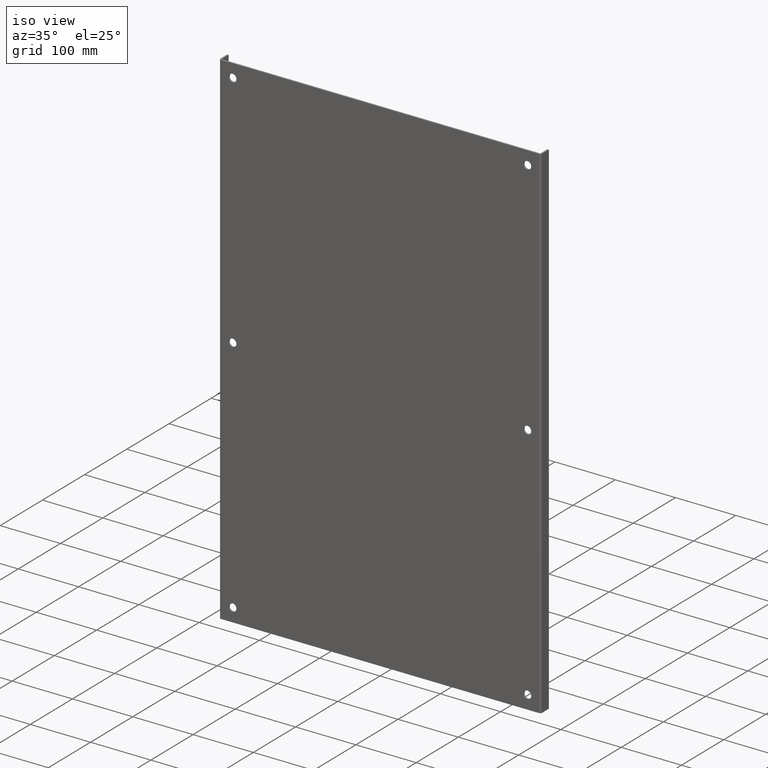
[diagram: clean part render]
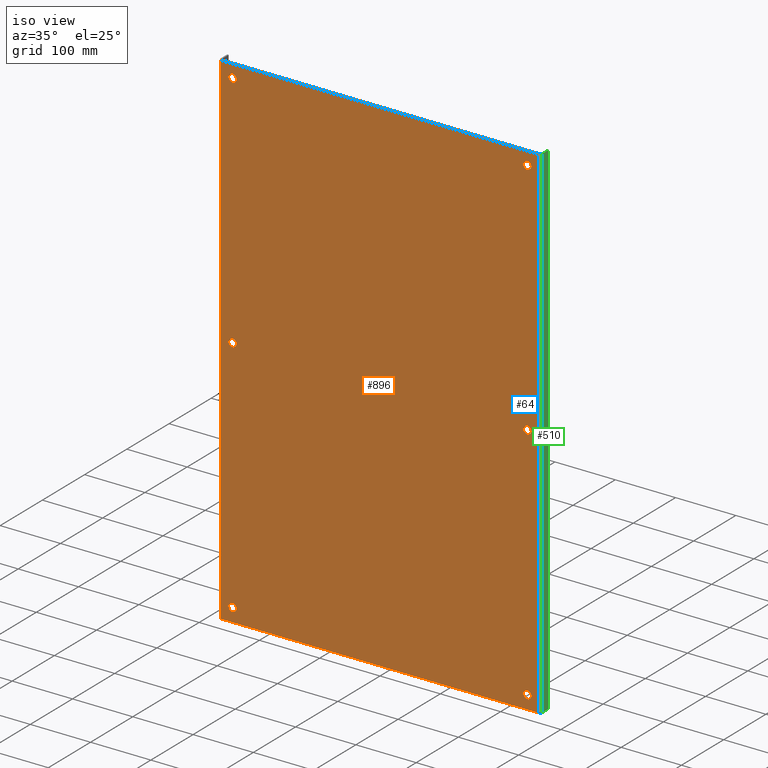
[diagram: same view with three faces highlighted in distinct colors, each labeled with its STEP entity id]
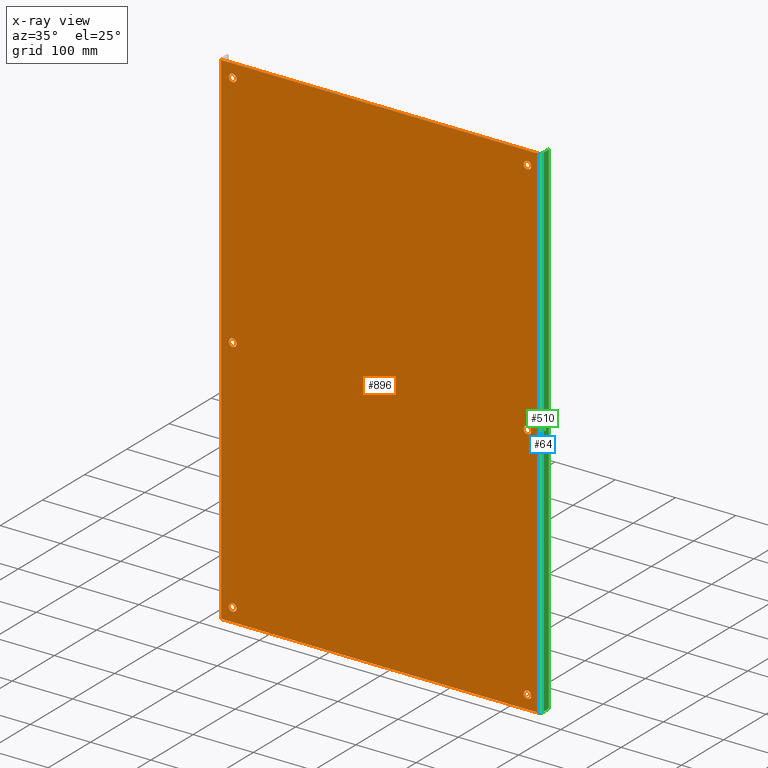
[diagram: x-ray of the same camera — body ghosted, the three highlighted faces saturated]
A machine part, iso view with three faces highlighted in distinct colors.
The next image is the same camera in x-ray (body ghosted, the three faces saturated) — at least one of them is partly hidden behind the body in this view.
Their STEP definitions:

[orange] entity #896 — the highlighted planar face has unit normal (0, -1, 0).
#35 = CARTESIAN_POINT ( 'NONE',  ( -10.37500000000000000, 0.0000000000000000000, 16.50000000000000000 ) ) ;
#38 = VERTEX_POINT ( 'NONE', #762 ) ;
#41 = CIRCLE ( 'NONE', #587, 0.2500000000000000000 ) ;
#50 = EDGE_CURVE ( 'NONE', #822, #822, #879, .T. ) ;
#59 = VERTEX_POINT ( 'NONE', #1000 ) ;
#74 = EDGE_CURVE ( 'NONE', #59, #59, #505, .T. ) ;
#88 = AXIS2_PLACEMENT_3D ( 'NONE', #1035, #494, #1028 ) ;
#99 = CARTESIAN_POINT ( 'NONE',  ( 9.625000000000000000, 0.0000000000000000000, -5.463695987328543200E-16 ) ) ;
#108 = DIRECTION ( 'NONE',  ( 1.000000000000000000, 0.0000000000000000000, 0.0000000000000000000 ) ) ;
#113 = DIRECTION ( 'NONE',  ( 0.0000000000000000000, -0.0000000000000000000, -1.000000000000000000 ) ) ;
#115 = CARTESIAN_POINT ( 'NONE',  ( -9.625000000000000000, 0.0000000000000000000, -0.2500000000000005551 ) ) ;
#133 = EDGE_CURVE ( 'NONE', #372, #372, #975, .T. ) ;
#158 = EDGE_LOOP ( 'NONE', ( #939 ) ) ;
#204 = ORIENTED_EDGE ( 'NONE', *, *, #1005, .T. ) ;
#247 = FACE_OUTER_BOUND ( 'NONE', #343, .T. ) ;
#267 = EDGE_CURVE ( 'NONE', #38, #38, #41, .T. ) ;
#271 = CARTESIAN_POINT ( 'NONE',  ( 10.37500000000000000, 0.0000000000000000000, 16.50000000000000000 ) ) ;
#276 = CARTESIAN_POINT ( 'NONE',  ( -9.625000000000000000, 0.0000000000000000000, 15.62500000000000178 ) ) ;
#290 = ORIENTED_EDGE ( 'NONE', *, *, #785, .T. ) ;
#304 = VECTOR ( 'NONE', #108, 39.37007874015748143 ) ;
#322 = AXIS2_PLACEMENT_3D ( 'NONE', #805, #1047, #332 ) ;
#332 = DIRECTION ( 'NONE',  ( 0.0000000000000000000, 0.0000000000000000000, -1.000000000000000000 ) ) ;
#343 = EDGE_LOOP ( 'NONE', ( #204, #381, #542, #487 ) ) ;
#344 = EDGE_LOOP ( 'NONE', ( #618 ) ) ;
#346 = CARTESIAN_POINT ( 'NONE',  ( -9.625000000000000000, 0.0000000000000000000, -15.62500000000000178 ) ) ;
#347 = DIRECTION ( 'NONE',  ( 0.0000000000000000000, -1.000000000000000000, 0.0000000000000000000 ) ) ;
#353 = LINE ( 'NONE', #614, #851 ) ;
#358 = EDGE_CURVE ( 'NONE', #366, #1006, #378, .T. ) ;
#359 = CARTESIAN_POINT ( 'NONE',  ( 9.625000000000000000, 0.0000000000000000000, 15.37500000000000000 ) ) ;
#362 = CARTESIAN_POINT ( 'NONE',  ( -9.625000000000000000, 0.0000000000000000000, -15.87500000000000178 ) ) ;
#366 = VERTEX_POINT ( 'NONE', #35 ) ;
#372 = VERTEX_POINT ( 'NONE', #362 ) ;
#378 = LINE ( 'NONE', #920, #432 ) ;
#381 = ORIENTED_EDGE ( 'NONE', *, *, #406, .T. ) ;
#382 = EDGE_LOOP ( 'NONE', ( #290 ) ) ;
#395 = AXIS2_PLACEMENT_3D ( 'NONE', #431, #347, #905 ) ;
#406 = EDGE_CURVE ( 'NONE', #980, #856, #353, .T. ) ;
#428 = FACE_BOUND ( 'NONE', #158, .T. ) ;
#430 = VECTOR ( 'NONE', #849, 39.37007874015748143 ) ;
#431 = CARTESIAN_POINT ( 'NONE',  ( -10.50000000000000000, 0.0000000000000000000, -16.50000000000000000 ) ) ;
#432 = VECTOR ( 'NONE', #113, 39.37007874015748143 ) ;
#436 = EDGE_CURVE ( 'NONE', #754, #754, #551, .T. ) ;
#444 = DIRECTION ( 'NONE',  ( 0.0000000000000000000, 0.0000000000000000000, -1.000000000000000000 ) ) ;
#449 = ORIENTED_EDGE ( 'NONE', *, *, #74, .T. ) ;
#456 = CARTESIAN_POINT ( 'NONE',  ( -10.50000000000000000, 0.0000000000000000000, -16.50000000000000000 ) ) ;
#470 = CIRCLE ( 'NONE', #322, 0.2500000000000008882 ) ;
#475 = EDGE_LOOP ( 'NONE', ( #541 ) ) ;
#487 = ORIENTED_EDGE ( 'NONE', *, *, #358, .T. ) ;
#488 = EDGE_LOOP ( 'NONE', ( #449 ) ) ;
#494 = DIRECTION ( 'NONE',  ( -0.0000000000000000000, 1.000000000000000000, -0.0000000000000000000 ) ) ;
#498 = EDGE_CURVE ( 'NONE', #856, #366, #874, .T. ) ;
#505 = CIRCLE ( 'NONE', #88, 0.2500000000000008882 ) ;
#514 = EDGE_LOOP ( 'NONE', ( #527 ) ) ;
#518 = PLANE ( 'NONE',  #395 ) ;
#520 = AXIS2_PLACEMENT_3D ( 'NONE', #346, #597, #810 ) ;
#527 = ORIENTED_EDGE ( 'NONE', *, *, #50, .T. ) ;
#533 = LINE ( 'NONE', #456, #304 ) ;
#541 = ORIENTED_EDGE ( 'NONE', *, *, #436, .T. ) ;
#542 = ORIENTED_EDGE ( 'NONE', *, *, #498, .T. ) ;
#551 = CIRCLE ( 'NONE', #1017, 0.2500000000000008882 ) ;
#574 = DIRECTION ( 'NONE',  ( 0.0000000000000000000, 0.0000000000000000000, -1.000000000000000000 ) ) ;
#580 = CARTESIAN_POINT ( 'NONE',  ( -9.625000000000000000, 0.0000000000000000000, -5.463695987328543200E-16 ) ) ;
#587 = AXIS2_PLACEMENT_3D ( 'NONE', #99, #611, #756 ) ;
#597 = DIRECTION ( 'NONE',  ( -0.0000000000000000000, 1.000000000000000000, -0.0000000000000000000 ) ) ;
#611 = DIRECTION ( 'NONE',  ( -0.0000000000000000000, 1.000000000000000000, -0.0000000000000000000 ) ) ;
#614 = CARTESIAN_POINT ( 'NONE',  ( 10.37499999999999822, 0.0000000000000000000, -16.50000000000000000 ) ) ;
#618 = ORIENTED_EDGE ( 'NONE', *, *, #133, .T. ) ;
#653 = DIRECTION ( 'NONE',  ( -0.0000000000000000000, 1.000000000000000000, -0.0000000000000000000 ) ) ;
#754 = VERTEX_POINT ( 'NONE', #846 ) ;
#756 = DIRECTION ( 'NONE',  ( 0.0000000000000000000, 0.0000000000000000000, -1.000000000000000000 ) ) ;
#762 = CARTESIAN_POINT ( 'NONE',  ( 9.625000000000000000, 0.0000000000000000000, -0.2500000000000005551 ) ) ;
#769 = AXIS2_PLACEMENT_3D ( 'NONE', #580, #653, #574 ) ;
#778 = CARTESIAN_POINT ( 'NONE',  ( -10.50000000000000000, 0.0000000000000000000, 16.50000000000000000 ) ) ;
#785 = EDGE_CURVE ( 'NONE', #795, #795, #470, .T. ) ;
#795 = VERTEX_POINT ( 'NONE', #359 ) ;
#805 = CARTESIAN_POINT ( 'NONE',  ( 9.625000000000000000, 0.0000000000000000000, 15.62500000000000178 ) ) ;
#810 = DIRECTION ( 'NONE',  ( 0.0000000000000000000, 0.0000000000000000000, -1.000000000000000000 ) ) ;
#817 = CARTESIAN_POINT ( 'NONE',  ( 10.37500000000000000, 0.0000000000000000000, -16.50000000000000000 ) ) ;
#822 = VERTEX_POINT ( 'NONE', #115 ) ;
#836 = FACE_BOUND ( 'NONE', #382, .T. ) ;
#841 = CARTESIAN_POINT ( 'NONE',  ( -10.37500000000000000, 0.0000000000000000000, -16.50000000000000000 ) ) ;
#846 = CARTESIAN_POINT ( 'NONE',  ( -9.625000000000000000, 0.0000000000000000000, 15.37500000000000000 ) ) ;
#849 = DIRECTION ( 'NONE',  ( -1.000000000000000000, -0.0000000000000000000, -0.0000000000000000000 ) ) ;
#851 = VECTOR ( 'NONE', #911, 39.37007874015748143 ) ;
#856 = VERTEX_POINT ( 'NONE', #271 ) ;
#860 = FACE_BOUND ( 'NONE', #488, .T. ) ;
#873 = FACE_BOUND ( 'NONE', #344, .T. ) ;
#874 = LINE ( 'NONE', #778, #430 ) ;
#879 = CIRCLE ( 'NONE', #769, 0.2500000000000000000 ) ;
#896 = ADVANCED_FACE ( 'NONE', ( #247, #836, #860, #873, #1015, #935, #428 ), #518, .T. ) ;
#905 = DIRECTION ( 'NONE',  ( 0.0000000000000000000, -0.0000000000000000000, -1.000000000000000000 ) ) ;
#911 = DIRECTION ( 'NONE',  ( -0.0000000000000000000, 0.0000000000000000000, 1.000000000000000000 ) ) ;
#917 = DIRECTION ( 'NONE',  ( -0.0000000000000000000, 1.000000000000000000, -0.0000000000000000000 ) ) ;
#920 = CARTESIAN_POINT ( 'NONE',  ( -10.37500000000000000, 0.0000000000000000000, -16.50000000000000000 ) ) ;
#935 = FACE_BOUND ( 'NONE', #514, .T. ) ;
#939 = ORIENTED_EDGE ( 'NONE', *, *, #267, .T. ) ;
#975 = CIRCLE ( 'NONE', #520, 0.2500000000000008882 ) ;
#980 = VERTEX_POINT ( 'NONE', #817 ) ;
#1000 = CARTESIAN_POINT ( 'NONE',  ( 9.625000000000000000, 0.0000000000000000000, -15.87500000000000178 ) ) ;
#1005 = EDGE_CURVE ( 'NONE', #1006, #980, #533, .T. ) ;
#1006 = VERTEX_POINT ( 'NONE', #841 ) ;
#1015 = FACE_BOUND ( 'NONE', #475, .T. ) ;
#1017 = AXIS2_PLACEMENT_3D ( 'NONE', #276, #917, #444 ) ;
#1028 = DIRECTION ( 'NONE',  ( 0.0000000000000000000, 0.0000000000000000000, -1.000000000000000000 ) ) ;
#1035 = CARTESIAN_POINT ( 'NONE',  ( 9.625000000000000000, 0.0000000000000000000, -15.62500000000000178 ) ) ;
#1047 = DIRECTION ( 'NONE',  ( -0.0000000000000000000, 1.000000000000000000, -0.0000000000000000000 ) ) ;

[blue] entity #64 — the highlighted cylindrical surface (edge-blend (fillet) strip) has radius 3.175 mm, axis along (0, 0, 1).
#7 = CARTESIAN_POINT ( 'NONE',  ( 10.37500000000000000, 0.1250000000000000000, -16.50000000000000000 ) ) ;
#10 = AXIS2_PLACEMENT_3D ( 'NONE', #7, #440, #174 ) ;
#54 = VERTEX_POINT ( 'NONE', #1044 ) ;
#57 = CARTESIAN_POINT ( 'NONE',  ( 10.37500000000000000, 0.1250000000000000000, 16.50000000000000000 ) ) ;
#60 = EDGE_CURVE ( 'NONE', #54, #705, #367, .T. ) ;
#64 = ADVANCED_FACE ( 'NONE', ( #813 ), #473, .T. ) ;
#153 = DIRECTION ( 'NONE',  ( 0.0000000000000000000, 0.0000000000000000000, 1.000000000000000000 ) ) ;
#172 = ORIENTED_EDGE ( 'NONE', *, *, #60, .T. ) ;
#173 = VECTOR ( 'NONE', #153, 39.37007874015748143 ) ;
#174 = DIRECTION ( 'NONE',  ( 1.000000000000000000, 0.0000000000000000000, 0.0000000000000000000 ) ) ;
#219 = AXIS2_PLACEMENT_3D ( 'NONE', #57, #632, #719 ) ;
#271 = CARTESIAN_POINT ( 'NONE',  ( 10.37500000000000000, 0.0000000000000000000, 16.50000000000000000 ) ) ;
#353 = LINE ( 'NONE', #614, #851 ) ;
#355 = ORIENTED_EDGE ( 'NONE', *, *, #602, .T. ) ;
#367 = LINE ( 'NONE', #393, #173 ) ;
#369 = AXIS2_PLACEMENT_3D ( 'NONE', #964, #1032, #567 ) ;
#393 = CARTESIAN_POINT ( 'NONE',  ( 10.50000000000000000, 0.1250000000000000000, -16.50000000000000000 ) ) ;
#406 = EDGE_CURVE ( 'NONE', #980, #856, #353, .T. ) ;
#410 = CIRCLE ( 'NONE', #10, 0.1249999999999993477 ) ;
#440 = DIRECTION ( 'NONE',  ( 0.0000000000000000000, 0.0000000000000000000, 1.000000000000000000 ) ) ;
#459 = EDGE_LOOP ( 'NONE', ( #172, #355, #899, #489 ) ) ;
#473 = CYLINDRICAL_SURFACE ( 'NONE', #369, 0.1249999999999993477 ) ;
#489 = ORIENTED_EDGE ( 'NONE', *, *, #961, .T. ) ;
#567 = DIRECTION ( 'NONE',  ( 1.000000000000000000, 0.0000000000000000000, 0.0000000000000000000 ) ) ;
#572 = CARTESIAN_POINT ( 'NONE',  ( 10.50000000000000000, 0.1250000000000000000, 16.50000000000000000 ) ) ;
#602 = EDGE_CURVE ( 'NONE', #705, #856, #612, .T. ) ;
#612 = CIRCLE ( 'NONE', #219, 0.1249999999999993477 ) ;
#614 = CARTESIAN_POINT ( 'NONE',  ( 10.37499999999999822, 0.0000000000000000000, -16.50000000000000000 ) ) ;
#632 = DIRECTION ( 'NONE',  ( -0.0000000000000000000, -0.0000000000000000000, -1.000000000000000000 ) ) ;
#705 = VERTEX_POINT ( 'NONE', #572 ) ;
#719 = DIRECTION ( 'NONE',  ( 1.000000000000000000, 0.0000000000000000000, 0.0000000000000000000 ) ) ;
#813 = FACE_OUTER_BOUND ( 'NONE', #459, .T. ) ;
#817 = CARTESIAN_POINT ( 'NONE',  ( 10.37500000000000000, 0.0000000000000000000, -16.50000000000000000 ) ) ;
#851 = VECTOR ( 'NONE', #911, 39.37007874015748143 ) ;
#856 = VERTEX_POINT ( 'NONE', #271 ) ;
#899 = ORIENTED_EDGE ( 'NONE', *, *, #406, .F. ) ;
#911 = DIRECTION ( 'NONE',  ( -0.0000000000000000000, 0.0000000000000000000, 1.000000000000000000 ) ) ;
#961 = EDGE_CURVE ( 'NONE', #980, #54, #410, .T. ) ;
#964 = CARTESIAN_POINT ( 'NONE',  ( 10.37500000000000000, 0.1250000000000000000, -16.50000000000000000 ) ) ;
#980 = VERTEX_POINT ( 'NONE', #817 ) ;
#1032 = DIRECTION ( 'NONE',  ( 0.0000000000000000000, 0.0000000000000000000, 1.000000000000000000 ) ) ;
#1044 = CARTESIAN_POINT ( 'NONE',  ( 10.50000000000000000, 0.1250000000000000000, -16.50000000000000000 ) ) ;

[green] entity #510 — the highlighted planar face has unit normal (1, 0, 0).
#18 = VERTEX_POINT ( 'NONE', #389 ) ;
#28 = DIRECTION ( 'NONE',  ( -0.0000000000000000000, -1.000000000000000000, -0.0000000000000000000 ) ) ;
#36 = CARTESIAN_POINT ( 'NONE',  ( 10.50000000000000000, 0.09499999999999998723, -16.50000000000000355 ) ) ;
#54 = VERTEX_POINT ( 'NONE', #1044 ) ;
#60 = EDGE_CURVE ( 'NONE', #54, #705, #367, .T. ) ;
#68 = VERTEX_POINT ( 'NONE', #485 ) ;
#77 = VECTOR ( 'NONE', #837, 39.37007874015748143 ) ;
#153 = DIRECTION ( 'NONE',  ( 0.0000000000000000000, 0.0000000000000000000, 1.000000000000000000 ) ) ;
#173 = VECTOR ( 'NONE', #153, 39.37007874015748143 ) ;
#186 = CARTESIAN_POINT ( 'NONE',  ( 10.50000000000000000, 0.7500000000000001110, 16.50000000000000000 ) ) ;
#199 = ORIENTED_EDGE ( 'NONE', *, *, #388, .T. ) ;
#209 = VECTOR ( 'NONE', #28, 39.37007874015748143 ) ;
#229 = ORIENTED_EDGE ( 'NONE', *, *, #1045, .F. ) ;
#240 = EDGE_LOOP ( 'NONE', ( #229, #199, #952, #749 ) ) ;
#257 = CARTESIAN_POINT ( 'NONE',  ( 10.50000000000000000, 0.09499999999999998723, 16.50000000000000000 ) ) ;
#367 = LINE ( 'NONE', #393, #173 ) ;
#371 = CARTESIAN_POINT ( 'NONE',  ( 10.50000000000000000, 0.09379024048199331720, 16.50000000000000000 ) ) ;
#388 = EDGE_CURVE ( 'NONE', #18, #68, #1018, .T. ) ;
#389 = CARTESIAN_POINT ( 'NONE',  ( 10.50000000000000000, 0.7500000000000001110, -16.50000000000000000 ) ) ;
#393 = CARTESIAN_POINT ( 'NONE',  ( 10.50000000000000000, 0.1250000000000000000, -16.50000000000000000 ) ) ;
#442 = AXIS2_PLACEMENT_3D ( 'NONE', #371, #859, #936 ) ;
#463 = PLANE ( 'NONE',  #442 ) ;
#485 = CARTESIAN_POINT ( 'NONE',  ( 10.50000000000000000, 0.7500000000000001110, 16.50000000000000000 ) ) ;
#510 = ADVANCED_FACE ( 'NONE', ( #644 ), #463, .T. ) ;
#572 = CARTESIAN_POINT ( 'NONE',  ( 10.50000000000000000, 0.1250000000000000000, 16.50000000000000000 ) ) ;
#644 = FACE_OUTER_BOUND ( 'NONE', #240, .T. ) ;
#686 = LINE ( 'NONE', #257, #823 ) ;
#705 = VERTEX_POINT ( 'NONE', #572 ) ;
#749 = ORIENTED_EDGE ( 'NONE', *, *, #60, .F. ) ;
#823 = VECTOR ( 'NONE', #995, 39.37007874015748143 ) ;
#837 = DIRECTION ( 'NONE',  ( 0.0000000000000000000, -0.0000000000000000000, 1.000000000000000000 ) ) ;
#859 = DIRECTION ( 'NONE',  ( 1.000000000000000000, 6.123233995736769734E-17, 0.0000000000000000000 ) ) ;
#936 = DIRECTION ( 'NONE',  ( -6.123233995736769734E-17, 1.000000000000000000, 0.0000000000000000000 ) ) ;
#946 = EDGE_CURVE ( 'NONE', #705, #68, #686, .T. ) ;
#952 = ORIENTED_EDGE ( 'NONE', *, *, #946, .F. ) ;
#995 = DIRECTION ( 'NONE',  ( 0.0000000000000000000, 1.000000000000000000, -0.0000000000000000000 ) ) ;
#1018 = LINE ( 'NONE', #186, #77 ) ;
#1027 = LINE ( 'NONE', #36, #209 ) ;
#1044 = CARTESIAN_POINT ( 'NONE',  ( 10.50000000000000000, 0.1250000000000000000, -16.50000000000000000 ) ) ;
#1045 = EDGE_CURVE ( 'NONE', #18, #54, #1027, .T. ) ;